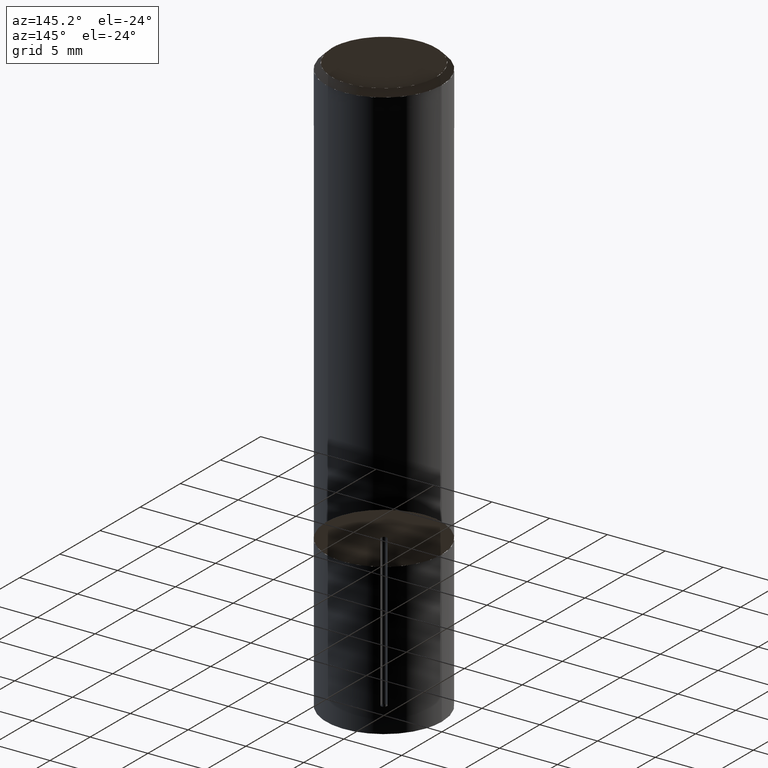
[diagram: clean part render]
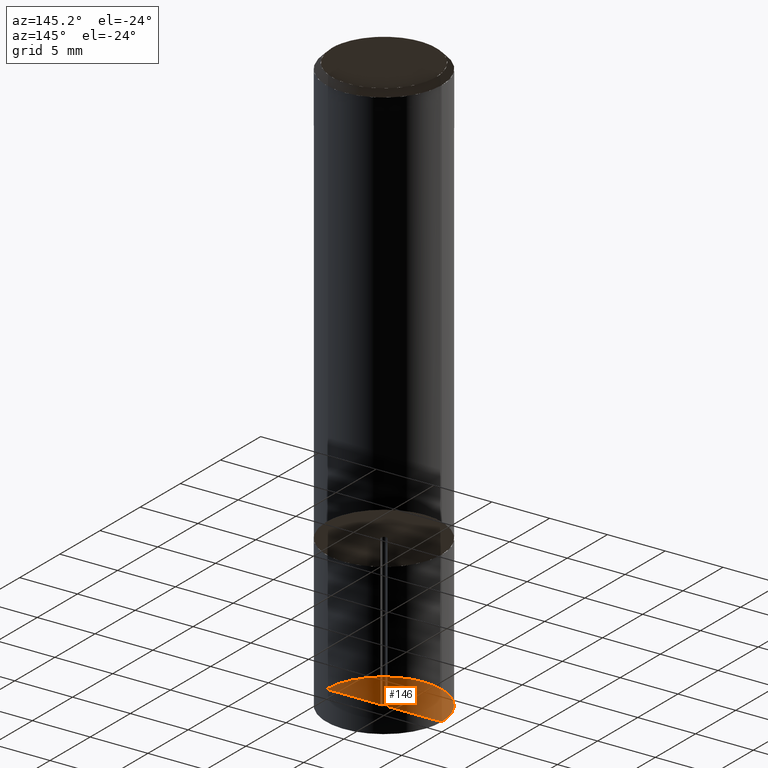
[diagram: same view with one face highlighted and labeled with its STEP entity id]
A machine part, auxiliary view. The second image highlights one B-rep face of the part: STEP entity #146.
In plain terms, the highlighted face is a freeform B-spline surface patch.
Its self-contained STEP definition (entity closure, byte-faithful):
#71=CARTESIAN_POINT('',(0.25,0.0,-13.0));
#72=CARTESIAN_POINT('',(0.25,0.25,-13.0));
#73=CARTESIAN_POINT('',(0.0,0.25,-13.0));
#74=CARTESIAN_POINT('',(-0.25,0.25,-13.0));
#75=CARTESIAN_POINT('',(-0.25,0.0,-13.0));
#76=CARTESIAN_POINT('',(5.0,0.0,-13.0));
#77=CARTESIAN_POINT('',(5.0,5.0,-13.0));
#78=CARTESIAN_POINT('',(0.0,5.0,-13.0));
#79=CARTESIAN_POINT('',(-5.0,5.0,-13.0));
#80=CARTESIAN_POINT('',(-5.0,0.0,-13.0));
#127=(
BOUNDED_SURFACE()
B_SPLINE_SURFACE(1,2,(
(#71,#72,#73,#74,#75),
(#76,#77,#78,#79,#80)
), .UNSPECIFIED.,.F.,.F.,.F.)
B_SPLINE_SURFACE_WITH_KNOTS((2,2),(3,2,3),(
0.0,1.0),(
0.0,0.5,1.0), .UNSPECIFIED.)
GEOMETRIC_REPRESENTATION_ITEM()
RATIONAL_B_SPLINE_SURFACE(((1.0,0.707106781187,1.0,0.707106781187,1.0),
(1.0,0.707106781187,1.0,0.707106781187,1.0)
))
REPRESENTATION_ITEM('')
SURFACE()
);
#128=(
BOUNDED_CURVE()
B_SPLINE_CURVE(2,(#75,#74,#73,#72,#71),.UNSPECIFIED.,.F.,.F.)
B_SPLINE_CURVE_WITH_KNOTS((3,2,3),
(0.0,0.5,1.0),.UNSPECIFIED.)
CURVE()
GEOMETRIC_REPRESENTATION_ITEM()
RATIONAL_B_SPLINE_CURVE((1.0,0.707106781187,1.0,0.707106781187,1.0))
REPRESENTATION_ITEM('')
);
#129=(
BOUNDED_CURVE()
B_SPLINE_CURVE(1,(#71,#76),.UNSPECIFIED.,.F.,.F.)
B_SPLINE_CURVE_WITH_KNOTS((2,2),
(0.0,1.0),.UNSPECIFIED.)
CURVE()
GEOMETRIC_REPRESENTATION_ITEM()
RATIONAL_B_SPLINE_CURVE((1.0,1.0))
REPRESENTATION_ITEM('')
);
#130=(
BOUNDED_CURVE()
B_SPLINE_CURVE(2,(#76,#77,#78,#79,#80),.UNSPECIFIED.,.F.,.F.)
B_SPLINE_CURVE_WITH_KNOTS((3,2,3),
(0.0,0.5,1.0),.UNSPECIFIED.)
CURVE()
GEOMETRIC_REPRESENTATION_ITEM()
RATIONAL_B_SPLINE_CURVE((1.0,0.707106781187,1.0,0.707106781187,1.0))
REPRESENTATION_ITEM('')
);
#131=(
BOUNDED_CURVE()
B_SPLINE_CURVE(1,(#80,#75),.UNSPECIFIED.,.F.,.F.)
B_SPLINE_CURVE_WITH_KNOTS((2,2),
(0.0,1.0),.UNSPECIFIED.)
CURVE()
GEOMETRIC_REPRESENTATION_ITEM()
RATIONAL_B_SPLINE_CURVE((1.0,1.0))
REPRESENTATION_ITEM('')
);
#132=VERTEX_POINT('',#71);
#133=VERTEX_POINT('',#75);
#134=VERTEX_POINT('',#76);
#135=VERTEX_POINT('',#80);
#136=EDGE_CURVE('',#133,#132,#128,.T.);
#137=EDGE_CURVE('',#132,#134,#129,.T.);
#138=EDGE_CURVE('',#134,#135,#130,.T.);
#139=EDGE_CURVE('',#135,#133,#131,.T.);
#140=ORIENTED_EDGE('',*,*,#136,.T.);
#141=ORIENTED_EDGE('',*,*,#137,.T.);
#142=ORIENTED_EDGE('',*,*,#138,.T.);
#143=ORIENTED_EDGE('',*,*,#139,.T.);
#144=EDGE_LOOP('',(#140,#141,#142,#143));
#145=FACE_OUTER_BOUND('',#144,.T.);
#146=ADVANCED_FACE('',(#145),#127,.T.);